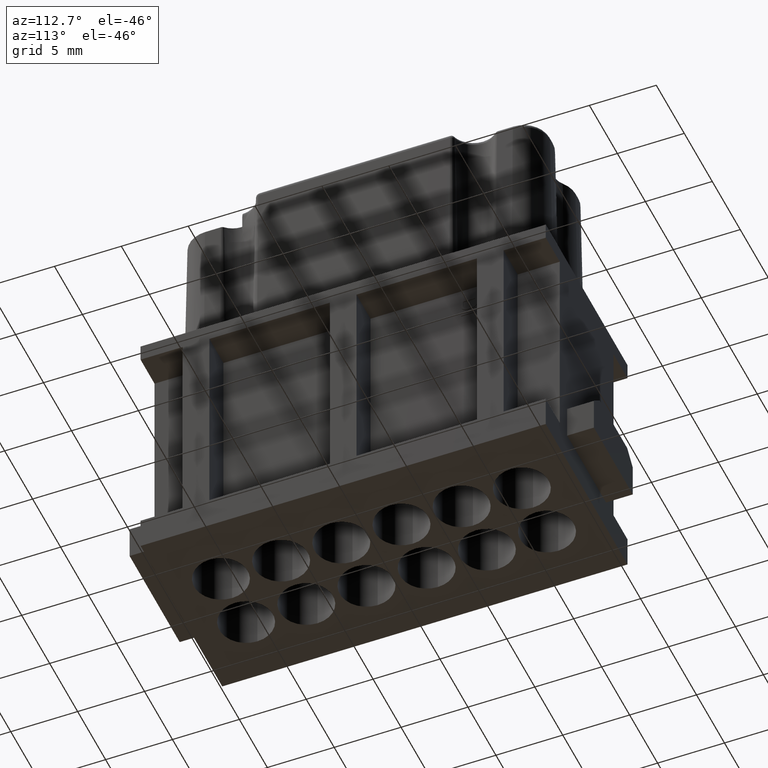
[diagram: clean part render]
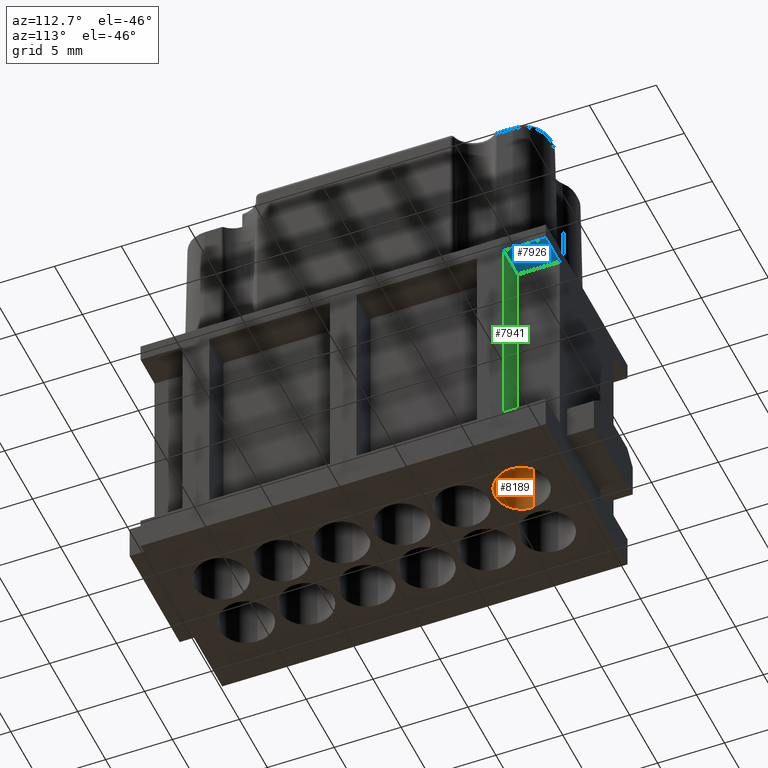
[diagram: same view with three faces highlighted in distinct colors, each labeled with its STEP entity id]
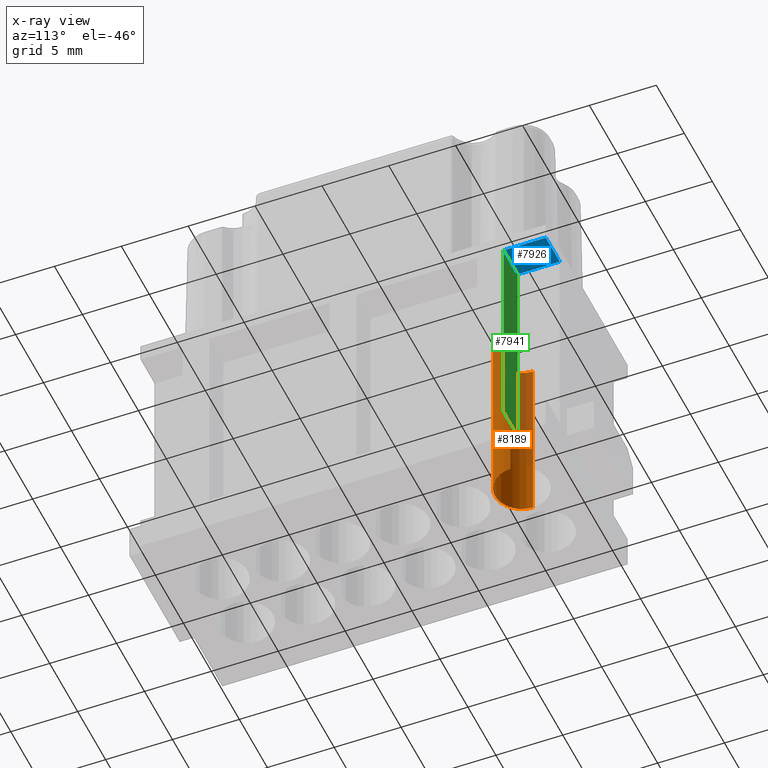
[diagram: x-ray of the same camera — body ghosted, the three highlighted faces saturated]
A machine part, auxiliary view with three faces highlighted in distinct colors.
The next image is the same camera in x-ray (body ghosted, the three faces saturated) — at least one of them is partly hidden behind the body in this view.
Their STEP definitions:

[orange] entity #8189 — the highlighted cylindrical surface (edge-blend (fillet) strip) has radius 2 mm, axis along (0, 0, -1).
#1186=CARTESIAN_POINT('',(2.25E0,1.125E1,0.E0));
#1187=DIRECTION('',(0.E0,0.E0,1.E0));
#1188=DIRECTION('',(-1.E0,0.E0,0.E0));
#1189=AXIS2_PLACEMENT_3D('',#1186,#1187,#1188);
#1301=DIRECTION('',(1.665334536938E-14,0.E0,-1.E0));
#1302=VECTOR('',#1301,1.35E1);
#1303=CARTESIAN_POINT('',(2.499999999998E-1,1.125E1,1.35E1));
#1304=LINE('',#1303,#1302);
#1305=DIRECTION('',(-1.657933050107E-14,0.E0,-1.E0));
#1306=VECTOR('',#1305,1.35E1);
#1307=CARTESIAN_POINT('',(4.25E0,1.125E1,1.35E1));
#1308=LINE('',#1307,#1306);
#1314=CARTESIAN_POINT('',(2.25E0,1.125E1,1.35E1));
#1315=DIRECTION('',(0.E0,0.E0,-1.E0));
#1316=DIRECTION('',(1.E0,0.E0,0.E0));
#1317=AXIS2_PLACEMENT_3D('',#1314,#1315,#1316);
#4344=CARTESIAN_POINT('',(4.25E0,1.125E1,0.E0));
#4345=CARTESIAN_POINT('',(2.5E-1,1.125E1,0.E0));
#4346=VERTEX_POINT('',#4344);
#4347=VERTEX_POINT('',#4345);
#4392=CARTESIAN_POINT('',(2.499999999998E-1,1.125E1,1.35E1));
#4393=VERTEX_POINT('',#4392);
#4394=CARTESIAN_POINT('',(4.25E0,1.125E1,1.35E1));
#4395=VERTEX_POINT('',#4394);
#8177=CARTESIAN_POINT('',(2.25E0,1.125E1,1.37E1));
#8178=DIRECTION('',(0.E0,0.E0,-1.E0));
#8179=DIRECTION('',(-1.E0,0.E0,0.E0));
#8180=AXIS2_PLACEMENT_3D('',#8177,#8178,#8179);
#8181=CYLINDRICAL_SURFACE('',#8180,2.E0);
#8182=ORIENTED_EDGE('',*,*,#8091,.T.);
#8183=ORIENTED_EDGE('',*,*,#8172,.F.);
#8185=ORIENTED_EDGE('',*,*,#8184,.T.);
#8186=ORIENTED_EDGE('',*,*,#8168,.T.);
#8187=EDGE_LOOP('',(#8182,#8183,#8185,#8186));
#8188=FACE_OUTER_BOUND('',#8187,.F.);
#8189=ADVANCED_FACE('',(#8188),#8181,.F.);
#1190=CIRCLE('',#1189,2.E0);
#1318=CIRCLE('',#1317,2.E0);
#8091=EDGE_CURVE('',#4347,#4346,#1190,.T.);
#8168=EDGE_CURVE('',#4393,#4347,#1304,.T.);
#8172=EDGE_CURVE('',#4395,#4346,#1308,.T.);
#8184=EDGE_CURVE('',#4395,#4393,#1318,.T.);

[blue] entity #7926 — the highlighted planar face has unit normal (0, 0, 1).
#1029=DIRECTION('',(-1.E0,0.E0,0.E0));
#1030=VECTOR('',#1029,2.5E0);
#1031=CARTESIAN_POINT('',(7.3E0,1.515E1,1.85E1));
#1032=LINE('',#1031,#1030);
#1065=DIRECTION('',(-1.E0,0.E0,0.E0));
#1066=VECTOR('',#1065,2.5E0);
#1067=CARTESIAN_POINT('',(7.3E0,1.2E1,1.85E1));
#1068=LINE('',#1067,#1066);
#1069=DIRECTION('',(0.E0,-1.E0,0.E0));
#1070=VECTOR('',#1069,3.15E0);
#1071=CARTESIAN_POINT('',(7.3E0,1.515E1,1.85E1));
#1072=LINE('',#1071,#1070);
#1085=DIRECTION('',(0.E0,-1.E0,0.E0));
#1086=VECTOR('',#1085,3.15E0);
#1087=CARTESIAN_POINT('',(4.8E0,1.515E1,1.85E1));
#1088=LINE('',#1087,#1086);
#4290=CARTESIAN_POINT('',(7.3E0,1.515E1,1.85E1));
#4291=CARTESIAN_POINT('',(4.8E0,1.515E1,1.85E1));
#4292=VERTEX_POINT('',#4290);
#4293=VERTEX_POINT('',#4291);
#4322=CARTESIAN_POINT('',(7.3E0,1.2E1,1.85E1));
#4323=VERTEX_POINT('',#4322);
#4340=CARTESIAN_POINT('',(4.8E0,1.2E1,1.85E1));
#4341=VERTEX_POINT('',#4340);
#7912=CARTESIAN_POINT('',(7.3E0,1.646062875260E1,1.85E1));
#7913=DIRECTION('',(0.E0,0.E0,1.E0));
#7914=DIRECTION('',(0.E0,-1.E0,0.E0));
#7915=AXIS2_PLACEMENT_3D('',#7912,#7913,#7914);
#7916=PLANE('',#7915);
#7918=ORIENTED_EDGE('',*,*,#7917,.F.);
#7920=ORIENTED_EDGE('',*,*,#7919,.F.);
#7921=ORIENTED_EDGE('',*,*,#7876,.T.);
#7923=ORIENTED_EDGE('',*,*,#7922,.T.);
#7924=EDGE_LOOP('',(#7918,#7920,#7921,#7923));
#7925=FACE_OUTER_BOUND('',#7924,.F.);
#7926=ADVANCED_FACE('',(#7925),#7916,.F.);
#7876=EDGE_CURVE('',#4292,#4293,#1032,.T.);
#7917=EDGE_CURVE('',#4323,#4341,#1068,.T.);
#7919=EDGE_CURVE('',#4292,#4323,#1072,.T.);
#7922=EDGE_CURVE('',#4293,#4341,#1088,.T.);

[green] entity #7941 — the highlighted planar face has unit normal (0, -1, 0).
#1065=DIRECTION('',(-1.E0,0.E0,0.E0));
#1066=VECTOR('',#1065,2.5E0);
#1067=CARTESIAN_POINT('',(7.3E0,1.2E1,1.85E1));
#1068=LINE('',#1067,#1066);
#1073=DIRECTION('',(-1.E0,0.E0,0.E0));
#1074=VECTOR('',#1073,2.5E0);
#1075=CARTESIAN_POINT('',(7.3E0,1.2E1,2.5E0));
#1076=LINE('',#1075,#1074);
#1077=DIRECTION('',(0.E0,0.E0,-1.E0));
#1078=VECTOR('',#1077,1.6E1);
#1079=CARTESIAN_POINT('',(7.3E0,1.2E1,1.85E1));
#1080=LINE('',#1079,#1078);
#1081=DIRECTION('',(0.E0,0.E0,-1.E0));
#1082=VECTOR('',#1081,1.6E1);
#1083=CARTESIAN_POINT('',(4.8E0,1.2E1,1.85E1));
#1084=LINE('',#1083,#1082);
#4320=CARTESIAN_POINT('',(7.3E0,1.2E1,2.5E0));
#4321=VERTEX_POINT('',#4320);
#4322=CARTESIAN_POINT('',(7.3E0,1.2E1,1.85E1));
#4323=VERTEX_POINT('',#4322);
#4340=CARTESIAN_POINT('',(4.8E0,1.2E1,1.85E1));
#4341=VERTEX_POINT('',#4340);
#4342=CARTESIAN_POINT('',(4.8E0,1.2E1,2.5E0));
#4343=VERTEX_POINT('',#4342);
#7927=CARTESIAN_POINT('',(7.3E0,1.2E1,1.85E1));
#7928=DIRECTION('',(0.E0,-1.E0,0.E0));
#7929=DIRECTION('',(0.E0,0.E0,-1.E0));
#7930=AXIS2_PLACEMENT_3D('',#7927,#7928,#7929);
#7931=PLANE('',#7930);
#7933=ORIENTED_EDGE('',*,*,#7932,.T.);
#7935=ORIENTED_EDGE('',*,*,#7934,.F.);
#7937=ORIENTED_EDGE('',*,*,#7936,.F.);
#7938=ORIENTED_EDGE('',*,*,#7917,.T.);
#7939=EDGE_LOOP('',(#7933,#7935,#7937,#7938));
#7940=FACE_OUTER_BOUND('',#7939,.F.);
#7941=ADVANCED_FACE('',(#7940),#7931,.F.);
#7917=EDGE_CURVE('',#4323,#4341,#1068,.T.);
#7932=EDGE_CURVE('',#4341,#4343,#1084,.T.);
#7934=EDGE_CURVE('',#4321,#4343,#1076,.T.);
#7936=EDGE_CURVE('',#4323,#4321,#1080,.T.);